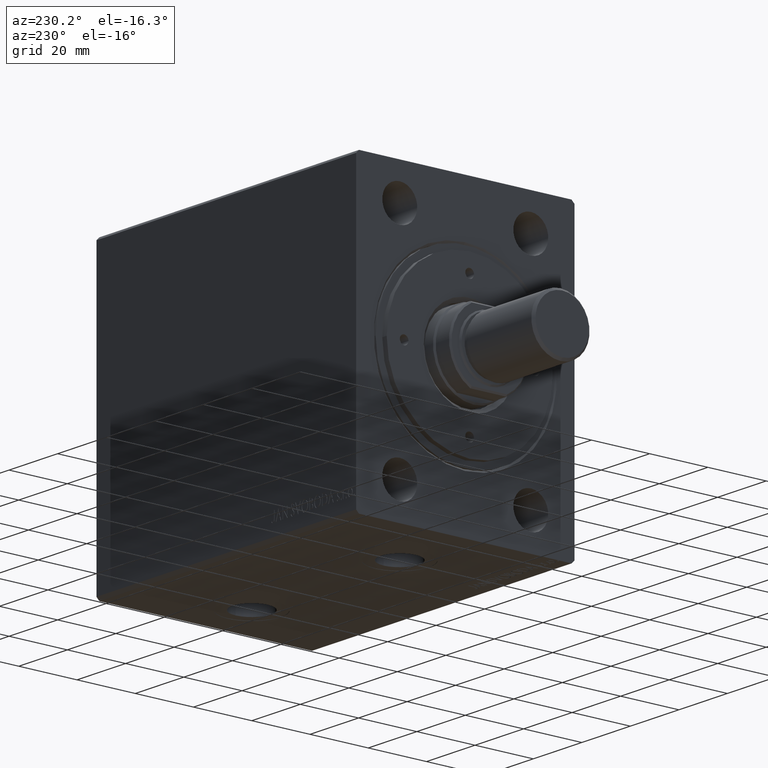
[diagram: clean part render]
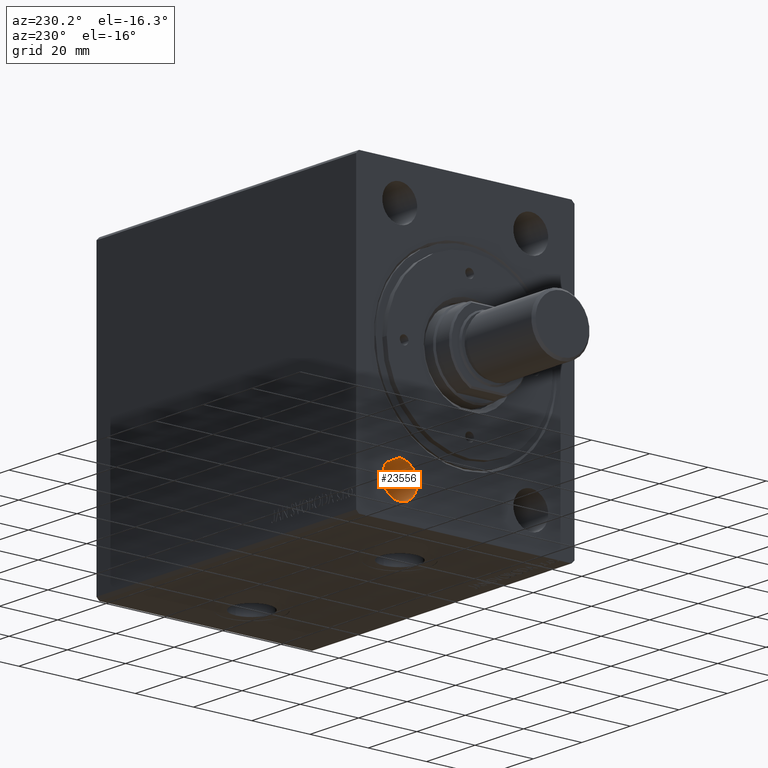
[diagram: same view with one face highlighted and labeled with its STEP entity id]
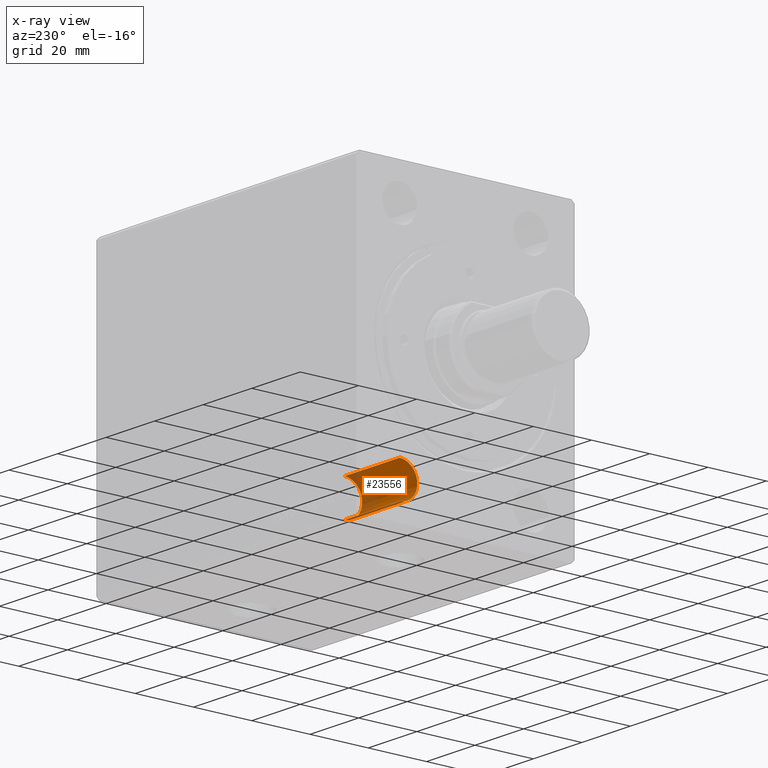
[diagram: x-ray of the same camera — body ghosted, the highlighted face saturated]
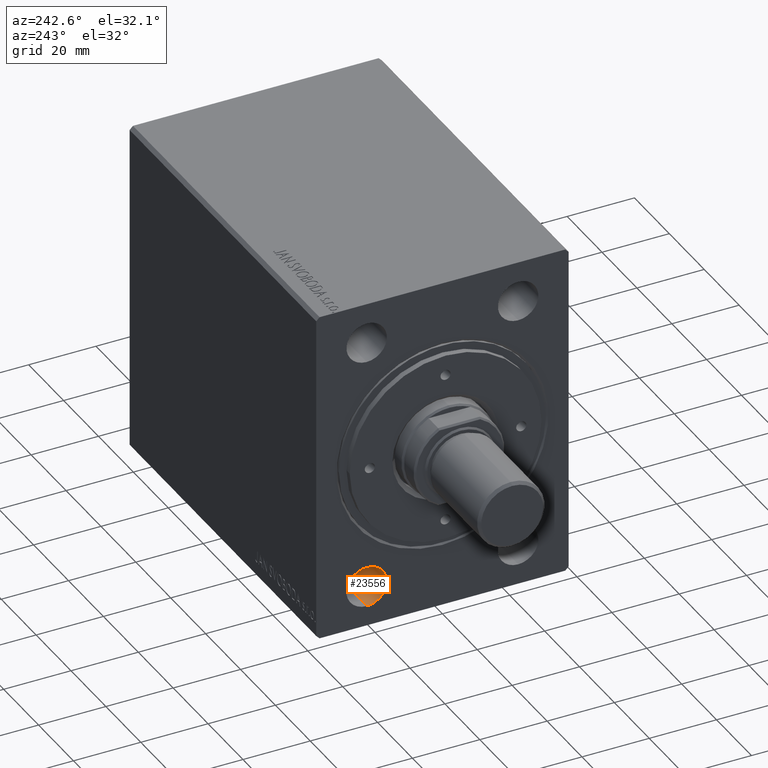
[diagram: same view with one face highlighted and labeled with its STEP entity id]
A machine part, auxiliary view. The second image highlights one B-rep face of the part: STEP entity #23556.
The next image is the same camera in x-ray: the body ghosted, the highlighted face saturated — about 26% of this face is hidden behind the body in this view.
A second angle (auxiliary view) of the same face is appended — the face is thin or edge-on in the first view.
In plain terms, the highlighted cylindrical surface (edge-blend (fillet) strip) has radius 6 mm, axis along (-1, -0, -0).
Its self-contained STEP definition (entity closure, byte-faithful):
#153 = ORIENTED_EDGE ( 'NONE', *, *, #13743, .F. ) ;
#1340 = DIRECTION ( 'NONE',  ( 0.000000000000000000, 0.000000000000000000, 1.000000000000000000 ) ) ;
#1686 = CARTESIAN_POINT ( 'NONE',  ( 2.449293598294703949E-16, 22.50000000000000000, -44.00000000000000000 ) ) ;
#3162 = CIRCLE ( 'NONE', #6760, 5.999999999999998224 ) ;
#3689 = CARTESIAN_POINT ( 'NONE',  ( 22.67000000000000171, 22.50000000000000000, -38.00000000000000000 ) ) ;
#3703 = EDGE_CURVE ( 'NONE', #44092, #30468, #3162, .T. ) ;
#4046 = ORIENTED_EDGE ( 'NONE', *, *, #28873, .T. ) ;
#5529 = VERTEX_POINT ( 'NONE', #38477 ) ;
#6218 = DIRECTION ( 'NONE',  ( -1.000000000000000000, -0.000000000000000000, -0.000000000000000000 ) ) ;
#6439 = CARTESIAN_POINT ( 'NONE',  ( 0.000000000000000000, 22.50000000000000000, -32.00000000000000000 ) ) ;
#6760 = AXIS2_PLACEMENT_3D ( 'NONE', #27474, #10395, #7231 ) ;
#7231 = DIRECTION ( 'NONE',  ( 0.000000000000000000, 0.000000000000000000, 1.000000000000000000 ) ) ;
#7378 = CIRCLE ( 'NONE', #39654, 5.999999999999998224 ) ;
#10395 = DIRECTION ( 'NONE',  ( -1.000000000000000000, -0.000000000000000000, -0.000000000000000000 ) ) ;
#13500 = EDGE_LOOP ( 'NONE', ( #153, #4046, #40850, #36140 ) ) ;
#13743 = EDGE_CURVE ( 'NONE', #13867, #5529, #7378, .T. ) ;
#13855 = VECTOR ( 'NONE', #6218, 1000.000000000000000 ) ;
#13867 = VERTEX_POINT ( 'NONE', #33141 ) ;
#14725 = DIRECTION ( 'NONE',  ( -1.000000000000000000, -0.000000000000000000, -0.000000000000000000 ) ) ;
#15291 = CARTESIAN_POINT ( 'NONE',  ( 2.449293598294703949E-16, 22.50000000000000000, -32.00000000000000000 ) ) ;
#18446 = CARTESIAN_POINT ( 'NONE',  ( 0.000000000000000000, 22.50000000000000000, -38.00000000000000000 ) ) ;
#20801 = DIRECTION ( 'NONE',  ( 0.000000000000000000, 0.000000000000000000, 1.000000000000000000 ) ) ;
#23252 = EDGE_CURVE ( 'NONE', #5529, #30468, #39698, .T. ) ;
#23556 = ADVANCED_FACE ( 'NONE', ( #35508 ), #35730, .F. ) ;
#27474 = CARTESIAN_POINT ( 'NONE',  ( 2.449293598294703949E-16, 22.50000000000000000, -38.00000000000000000 ) ) ;
#28873 = EDGE_CURVE ( 'NONE', #13867, #44092, #34303, .T. ) ;
#30468 = VERTEX_POINT ( 'NONE', #15291 ) ;
#32151 = DIRECTION ( 'NONE',  ( -1.000000000000000000, -0.000000000000000000, -0.000000000000000000 ) ) ;
#33141 = CARTESIAN_POINT ( 'NONE',  ( 22.67000000000000171, 22.50000000000000000, -44.00000000000000000 ) ) ;
#34303 = LINE ( 'NONE', #43766, #44323 ) ;
#35508 = FACE_OUTER_BOUND ( 'NONE', #13500, .T. ) ;
#35730 = CYLINDRICAL_SURFACE ( 'NONE', #41814, 5.999999999999998224 ) ;
#36140 = ORIENTED_EDGE ( 'NONE', *, *, #23252, .F. ) ;
#38477 = CARTESIAN_POINT ( 'NONE',  ( 22.67000000000000171, 22.50000000000000000, -32.00000000000000000 ) ) ;
#39654 = AXIS2_PLACEMENT_3D ( 'NONE', #3689, #14725, #20801 ) ;
#39698 = LINE ( 'NONE', #6439, #13855 ) ;
#40850 = ORIENTED_EDGE ( 'NONE', *, *, #3703, .T. ) ;
#41034 = DIRECTION ( 'NONE',  ( -1.000000000000000000, -0.000000000000000000, -0.000000000000000000 ) ) ;
#41814 = AXIS2_PLACEMENT_3D ( 'NONE', #18446, #32151, #1340 ) ;
#43766 = CARTESIAN_POINT ( 'NONE',  ( 0.000000000000000000, 22.50000000000000000, -44.00000000000000000 ) ) ;
#44092 = VERTEX_POINT ( 'NONE', #1686 ) ;
#44323 = VECTOR ( 'NONE', #41034, 1000.000000000000000 ) ;